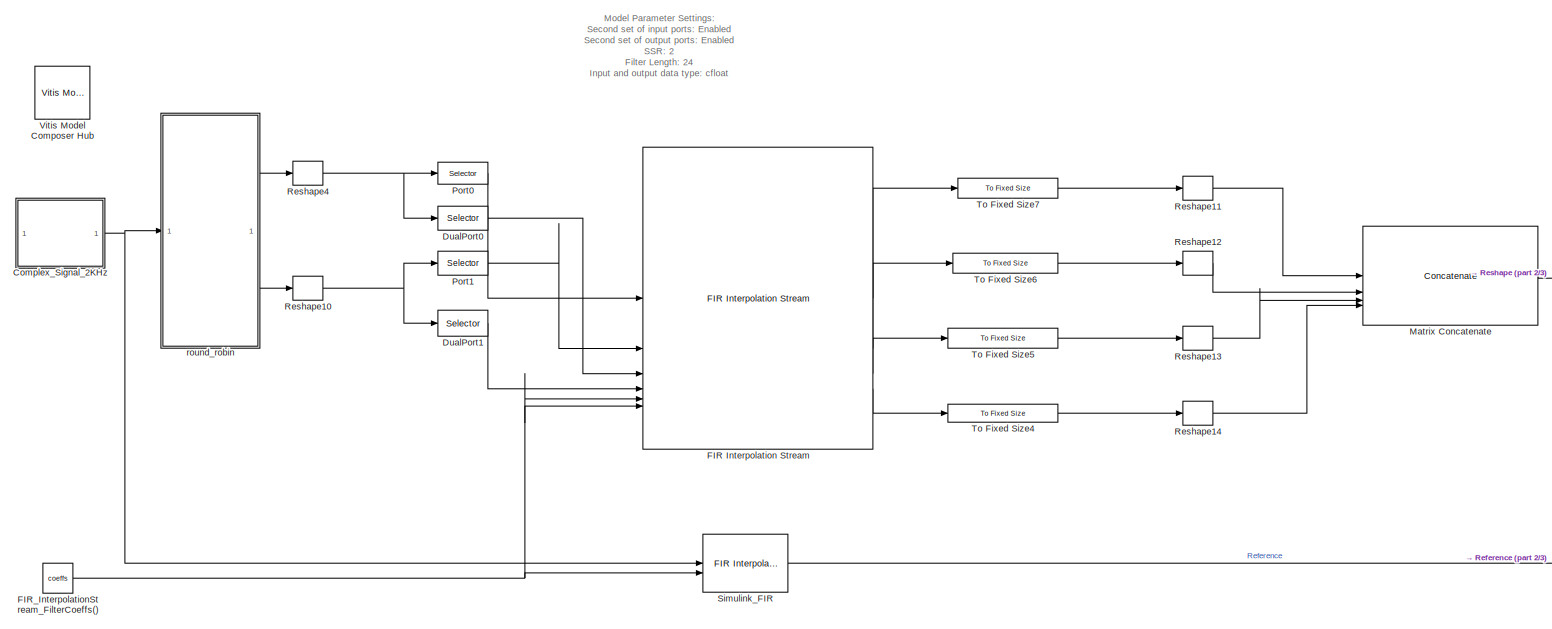
[diagram: root canvas - part 1/3, most of the canvas]
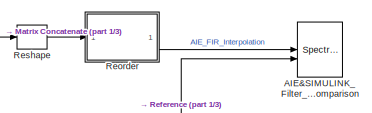
[diagram: root canvas - part 2/3, middle right region]
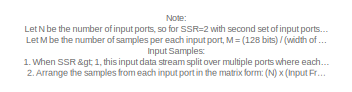
[diagram: root canvas - part 3/3, bottom left region]
MODEL slx_b3ee76ed96c9
KIND model
CONFIG AbsTol = auto
CONFIG EnableMultiTasking = off
CONFIG FixedStep = auto
CONFIG InitFcn = SSR = 2;\nFs = 50e3;               % Sampling Frequency\nFpass = 16000;            % Passband Frequency\nFstop = 23000;            % Stopband Frequency\nDpass = 0.00460513763;    % Passband Ripple\nDstop = 0.0001;           % Stopband Attenuation\ndens  = 16;                   % Density Factor\n% Calculate the order from the parameters using FIRPMORD.\n[N, Fo, Ao, W] = firpmord([Fpass, Fstop]/(Fs/2), [1 0...<+121ch>
CONFIG MaxStep = auto
CONFIG MinStep = auto
CONFIG RelTol = 1e-3
CONFIG SampleTimeConstraint = Unconstrained
CONFIG SolverName = VariableStepAuto
CONFIG StartTime = 0.0
CONFIG StopTime = 10.0
BLOCK [SpectrumAnalyzer] AIE&SIMULINK_Filter_Spectrum_Comparison
  AllowFFTLengthLessThanSamplesPerUpdate = on
  AveragingMethod = Exponential
  ChannelNames = [""]
  DefaultConfigurationName = spbscopes.SpectrumAnalyzerBlockCfg
  GraphicalSettings = {"GraphicalSettings":{"Style":{"BackgroundColor":[0.12941176470588237,0.12941176470588237,0.12941176470588237],"AxesColor":[0.070588235294117646,0.070588235294117646,0.070588235294117646],"LabelsColor":[0.85098039215686272,0.85098039215686272,0.85098039215686272],"PreserveColors":false,"Visible":[true,true],"LineStyle":["-","-"],"LineWidth":[1.5,1.5],"BarWidth":[0.9,0.9],"LineColor":[[1,0.90980392...<+1098ch>
  NumInputPorts = 2
  ScopeFrameLocation = window
  ScopeSpecificationString = spbscopes.SpectrumAnalyzerBlockCfg('CurrentConfiguration', extmgr.ConfigurationSet(extmgr.Configuration('Core','General UI',true,'FigureColor',[0.16        0.16        0.16]),extmgr.Configuration('Visuals','Spectrum',true,'Title','','YLabel','','MinYLim','-74.4883','MaxYLim','34.8519','Legend',true,'AxesProperties',struct('XGrid',{'on','on'},'YGrid',{'on','on'},'ZGrid',{'on','on'},'Color',{[0 0 0]...<+2398ch>
  ShowLegend = on
  Span = 49999.99999999999
  StartFrequency = -24999.999999999996
  StopFrequency = 24999.999999999996
  Visible = on
  WasSavedAsWebScope = on
  WindowPosition = [490.000000,286.000000,800.000000,500.000000,]
  YLimits = [-123.83502666,40.36686688]
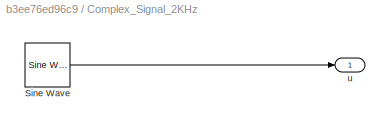
BLOCK [SubSystem] Complex_Signal_2KHz
BLOCK [Reference] Complex_Signal_2KHz/Sine Wave  REF=dspsrcs4/Sine Wave
  SourceBlock = dspsrcs4/Sine Wave
  SourceType = Sine Wave
BLOCK [Outport] Complex_Signal_2KHz/u
BLOCK [Selector] DualPort0
  IndexOptions = Index vector (dialog),Select all
  Indices = [3 4],1
  InputPortWidth = 256/SSR
  NumberOfDimensions = 2
  OutputSizes = 1,1
BLOCK [Selector] DualPort1
  IndexOptions = Index vector (dialog),Select all
  Indices = [3 4],1
  InputPortWidth = 256/SSR
  NumberOfDimensions = 2
  OutputSizes = 1,1
BLOCK [Reference] FIR Interpolation Stream  REF=aieDSP/FIR Interpolation Stream
  SourceBlock = aieDSP/FIR Interpolation Stream
  SourceType = FIR Interpolation Stream
BLOCK [Constant] FIR_InterpolationStream_FilterCoeffs()
  OutDataTypeStr = single
  Value = coeffs
BLOCK [Concatenate] Matrix Concatenate
  Mode = Multidimensional array
  NumInputs = 4
BLOCK [Selector] Port0
  IndexOptions = Index vector (dialog),Select all
  Indices = [1 2],1
  InputPortWidth = (256/SSR)
  NumberOfDimensions = 2
  OutputSizes = 1,1
BLOCK [Selector] Port1
  IndexOptions = Index vector (dialog),Select all
  Indices = [1 2],1
  InputPortWidth = (256/SSR)
  NumberOfDimensions = 2
  OutputSizes = 1,1
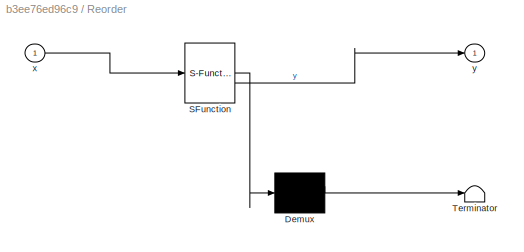
BLOCK [SubSystem] Reorder
  ErrorFcn = Stateflow.Translate.translate
  PermitHierarchicalResolution = ExplicitOnly
  SFBlockType = MATLAB Function
  TreatAsAtomicUnit = on
BLOCK [Demux] Reorder/ Demux 
  Outputs = 1
BLOCK [S-Function] Reorder/ SFunction 
  EnableBusSupport = on
  FunctionName = sf_sfun
  PortCounts = [1 2]
  SFcnIsStateOwnerBlock = off
  SFunctionDeploymentMode = off
  Tag = Stateflow S-Function 2
BLOCK [Terminator] Reorder/ Terminator 
BLOCK [Inport] Reorder/x
BLOCK [Outport] Reorder/y
BLOCK [Reshape] Reshape
BLOCK [Reshape] Reshape10
  OutputDimensionality = Customize
  OutputDimensions = [4,32]
BLOCK [Reshape] Reshape11
  OutputDimensionality = Customize
  OutputDimensions = [2,64]
BLOCK [Reshape] Reshape12
  OutputDimensionality = Customize
  OutputDimensions = [2,64]
BLOCK [Reshape] Reshape13
  OutputDimensionality = Customize
  OutputDimensions = [2,64]
BLOCK [Reshape] Reshape14
  OutputDimensionality = Customize
  OutputDimensions = [2,64]
BLOCK [Reshape] Reshape4
  OutputDimensionality = Customize
  OutputDimensions = [4,32]
BLOCK [Reference] Simulink_FIR   REF=dspmlti4/FIR
Interpolation
  SourceBlock = dspmlti4/FIR\nInterpolation
  SourceType = FIR Interpolation
  UserDataPersistent = on
BLOCK [Reference] To Fixed Size4  REF=aieUtilities/To Fixed Size
  SourceBlock = aieUtilities/To Fixed Size
  SourceType = To Fixed Size
BLOCK [Reference] To Fixed Size5  REF=aieUtilities/To Fixed Size
  SourceBlock = aieUtilities/To Fixed Size
  SourceType = To Fixed Size
BLOCK [Reference] To Fixed Size6  REF=aieUtilities/To Fixed Size
  SourceBlock = aieUtilities/To Fixed Size
  SourceType = To Fixed Size
BLOCK [Reference] To Fixed Size7  REF=aieUtilities/To Fixed Size
  SourceBlock = aieUtilities/To Fixed Size
  SourceType = To Fixed Size
BLOCK [Reference] Vitis Model Composer Hub  REF=vmcUtilities/Vitis Model Composer Hub
  SourceBlock = vmcUtilities/Vitis Model Composer Hub
  SourceType = VMC Hub
  Tag = genX
  UserDataPersistent = on
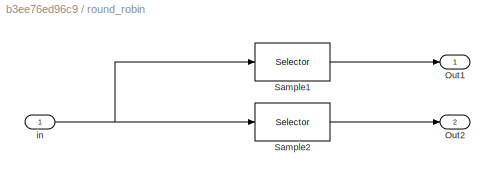
BLOCK [SubSystem] round_robin
BLOCK [Outport] round_robin/Out1
BLOCK [Outport] round_robin/Out2
  Port = 2
BLOCK [Selector] round_robin/Sample1
  IndexOptions = Index vector (dialog)
  Indices = 1:SSR:256
  InputPortWidth = 256
  OutputSizes = 1
BLOCK [Selector] round_robin/Sample2
  IndexOptions = Index vector (dialog)
  Indices = 2:SSR:256
  InputPortWidth = 256
  OutputSizes = 1
BLOCK [Inport] round_robin/in
ANNOTATION (root): Model Parameter Settings: Second set of input ports: Enabled Second set of output ports: Enabled SSR: 2 Filter Length: 24 Input and output data type: cfloat Interpolation Factor: 2 Input frame size: 256
ANNOTATION (root): Note: Let N be the number of input ports, so for SSR=2 with second set of input ports enabled, N=4 Let M be the number of samples per each input port, M = (128 bits) / (width of input data), so M=128/64=2 for cfloat Input Samples: 1. When SSR > 1, this input data stream split over multiple ports where each successive input sample is sent to a different input port in a round-robin fashion 2. Arrang...<+1307ch>
LINE Complex_Signal_2KHz/Sine Wave:1 -> Complex_Signal_2KHz/u:1
NET Complex_Signal_2KHz:1 -> Simulink_FIR :1, round_robin:1
LINE DualPort0:1 -> FIR Interpolation Stream:3
LINE DualPort1:1 -> FIR Interpolation Stream:4
LINE FIR Interpolation Stream:1 -> To Fixed Size7:1
LINE FIR Interpolation Stream:2 -> To Fixed Size6:1
LINE FIR Interpolation Stream:3 -> To Fixed Size5:1
LINE FIR Interpolation Stream:4 -> To Fixed Size4:1
NET FIR_InterpolationStream_FilterCoeffs():1 -> FIR Interpolation Stream:5, FIR Interpolation Stream:6, Simulink_FIR :2
LINE Matrix Concatenate:1 -> Reshape:1
LINE Port0:1 -> FIR Interpolation Stream:1
LINE Port1:1 -> FIR Interpolation Stream:2
LINE Reorder:1 -> AIE&SIMULINK_Filter_Spectrum_Comparison:1
NET Reshape10:1 -> DualPort1:1, Port1:1
LINE Reshape11:1 -> Matrix Concatenate:1
LINE Reshape12:1 -> Matrix Concatenate:2
LINE Reshape13:1 -> Matrix Concatenate:3
LINE Reshape14:1 -> Matrix Concatenate:4
NET Reshape4:1 -> DualPort0:1, Port0:1
LINE Reshape:1 -> Reorder:1
LINE Simulink_FIR :1 -> AIE&SIMULINK_Filter_Spectrum_Comparison:2
LINE To Fixed Size4:1 -> Reshape14:1
LINE To Fixed Size5:1 -> Reshape13:1
LINE To Fixed Size6:1 -> Reshape12:1
LINE To Fixed Size7:1 -> Reshape11:1
LINE round_robin/Sample1:1 -> round_robin/Out1:1
LINE round_robin/Sample2:1 -> round_robin/Out2:1
NET round_robin/in:1 -> round_robin/Sample1:1, round_robin/Sample2:1
LINE round_robin:1 -> Reshape4:1
LINE round_robin:2 -> Reshape10:1
note: NET lines group one-source signal fan-out (src -> all destinations, sorted); 1:1 wires keep LINE
CHART Reorder states=1 transitions=1
  STATE_LABEL 'eML_blk_kernel()'
  STATE_LABEL 'SCRIPT:\nfunction y = reorder(x)\ny = complex(zeros(512,1));\n   count = 0;\nfor i = 1:8:512\n \ny(i:i+7,1) = x([count+1 count+3 count+2 count+4 count+5 count+7 count+6 count+8]);\ncount = count + 8;\nend\n\n\n'
CHART  states=0 transitions=0
